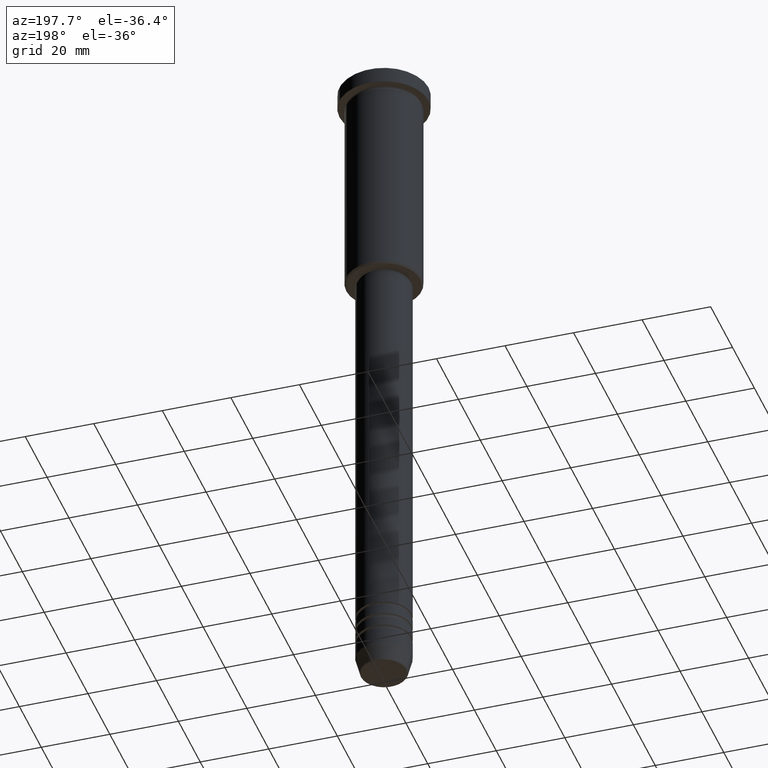
[diagram: clean part render]
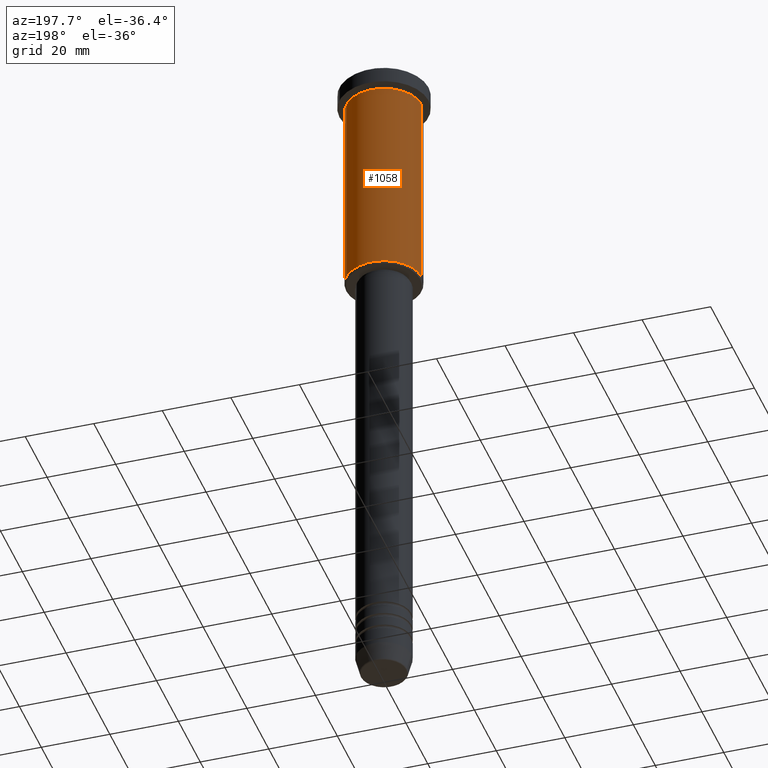
[diagram: same view with one face highlighted and labeled with its STEP entity id]
A machine part, auxiliary view. The second image highlights one B-rep face of the part: STEP entity #1058.
In plain terms, the highlighted cylindrical surface (partial cylindrical patch) has radius 11 mm, axis along (-0, -0, 1).
Its self-contained STEP definition (entity closure, byte-faithful):
#4 = CARTESIAN_POINT ( 'NONE',  ( -11.00000000000000000, 1.347111479062088405E-15, -5.999999999999999112 ) ) ;
#84 = ORIENTED_EDGE ( 'NONE', *, *, #879, .T. ) ;
#182 = AXIS2_PLACEMENT_3D ( 'NONE', #547, #376, #724 ) ;
#206 = DIRECTION ( 'NONE',  ( -0.000000000000000000, -0.000000000000000000, 1.000000000000000000 ) ) ;
#213 = LINE ( 'NONE', #1024, #931 ) ;
#257 = VERTEX_POINT ( 'NONE', #310 ) ;
#289 = CARTESIAN_POINT ( 'NONE',  ( -11.00000000000000000, 1.347111479062088405E-15, -65.49999999999997158 ) ) ;
#295 = LINE ( 'NONE', #756, #1111 ) ;
#310 = CARTESIAN_POINT ( 'NONE',  ( 11.00000000000000000, 0.000000000000000000, -5.999999999999999112 ) ) ;
#337 = EDGE_CURVE ( 'NONE', #257, #686, #831, .T. ) ;
#338 = DIRECTION ( 'NONE',  ( 1.000000000000000000, 0.000000000000000000, 0.000000000000000000 ) ) ;
#360 = CYLINDRICAL_SURFACE ( 'NONE', #655, 11.00000000000000000 ) ;
#376 = DIRECTION ( 'NONE',  ( -0.000000000000000000, -0.000000000000000000, 1.000000000000000000 ) ) ;
#380 = CARTESIAN_POINT ( 'NONE',  ( 0.000000000000000000, 0.000000000000000000, 0.000000000000000000 ) ) ;
#397 = EDGE_LOOP ( 'NONE', ( #84, #955, #489, #424 ) ) ;
#415 = DIRECTION ( 'NONE',  ( -0.000000000000000000, -0.000000000000000000, 1.000000000000000000 ) ) ;
#424 = ORIENTED_EDGE ( 'NONE', *, *, #665, .F. ) ;
#489 = ORIENTED_EDGE ( 'NONE', *, *, #337, .F. ) ;
#547 = CARTESIAN_POINT ( 'NONE',  ( 0.000000000000000000, 0.000000000000000000, -65.49999999999997158 ) ) ;
#655 = AXIS2_PLACEMENT_3D ( 'NONE', #380, #1157, #659 ) ;
#656 = VERTEX_POINT ( 'NONE', #289 ) ;
#659 = DIRECTION ( 'NONE',  ( 1.000000000000000000, 0.000000000000000000, 0.000000000000000000 ) ) ;
#665 = EDGE_CURVE ( 'NONE', #803, #257, #213, .T. ) ;
#686 = VERTEX_POINT ( 'NONE', #4 ) ;
#694 = CIRCLE ( 'NONE', #182, 11.00000000000000000 ) ;
#724 = DIRECTION ( 'NONE',  ( -1.000000000000000000, 0.000000000000000000, 0.000000000000000000 ) ) ;
#756 = CARTESIAN_POINT ( 'NONE',  ( -11.00000000000000000, 1.347111479062088405E-15, 0.000000000000000000 ) ) ;
#803 = VERTEX_POINT ( 'NONE', #1100 ) ;
#812 = AXIS2_PLACEMENT_3D ( 'NONE', #1158, #894, #338 ) ;
#831 = CIRCLE ( 'NONE', #812, 11.00000000000000000 ) ;
#879 = EDGE_CURVE ( 'NONE', #803, #656, #694, .T. ) ;
#894 = DIRECTION ( 'NONE',  ( -0.000000000000000000, -0.000000000000000000, 1.000000000000000000 ) ) ;
#904 = FACE_OUTER_BOUND ( 'NONE', #397, .T. ) ;
#931 = VECTOR ( 'NONE', #206, 1000.000000000000000 ) ;
#955 = ORIENTED_EDGE ( 'NONE', *, *, #1044, .T. ) ;
#1024 = CARTESIAN_POINT ( 'NONE',  ( 11.00000000000000000, 0.000000000000000000, 0.000000000000000000 ) ) ;
#1044 = EDGE_CURVE ( 'NONE', #656, #686, #295, .T. ) ;
#1058 = ADVANCED_FACE ( 'NONE', ( #904 ), #360, .T. ) ;
#1100 = CARTESIAN_POINT ( 'NONE',  ( 11.00000000000000000, 0.000000000000000000, -65.49999999999997158 ) ) ;
#1111 = VECTOR ( 'NONE', #415, 1000.000000000000000 ) ;
#1157 = DIRECTION ( 'NONE',  ( -0.000000000000000000, -0.000000000000000000, 1.000000000000000000 ) ) ;
#1158 = CARTESIAN_POINT ( 'NONE',  ( 0.000000000000000000, 0.000000000000000000, -5.999999999999999112 ) ) ;